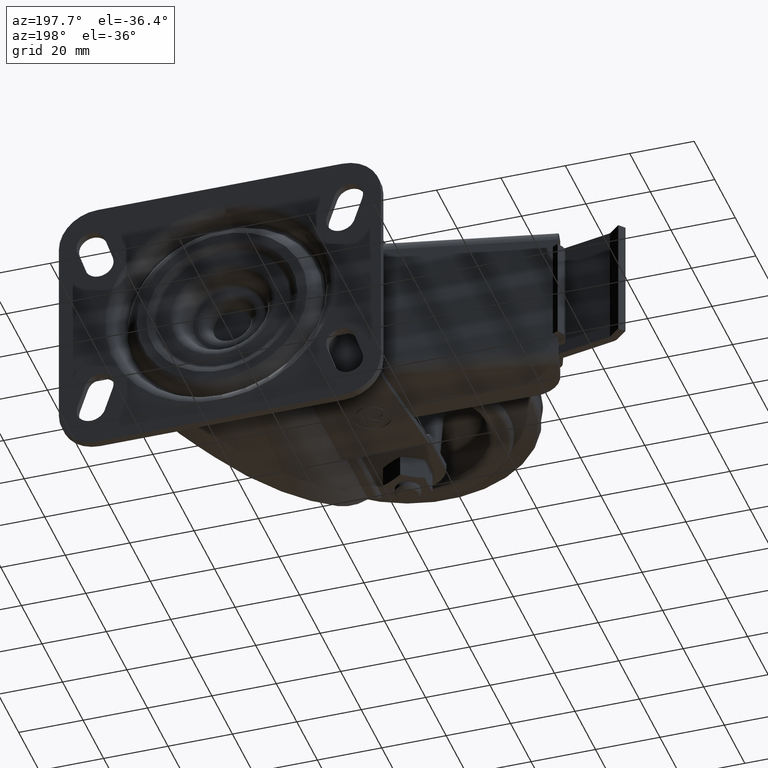
[diagram: clean part render]
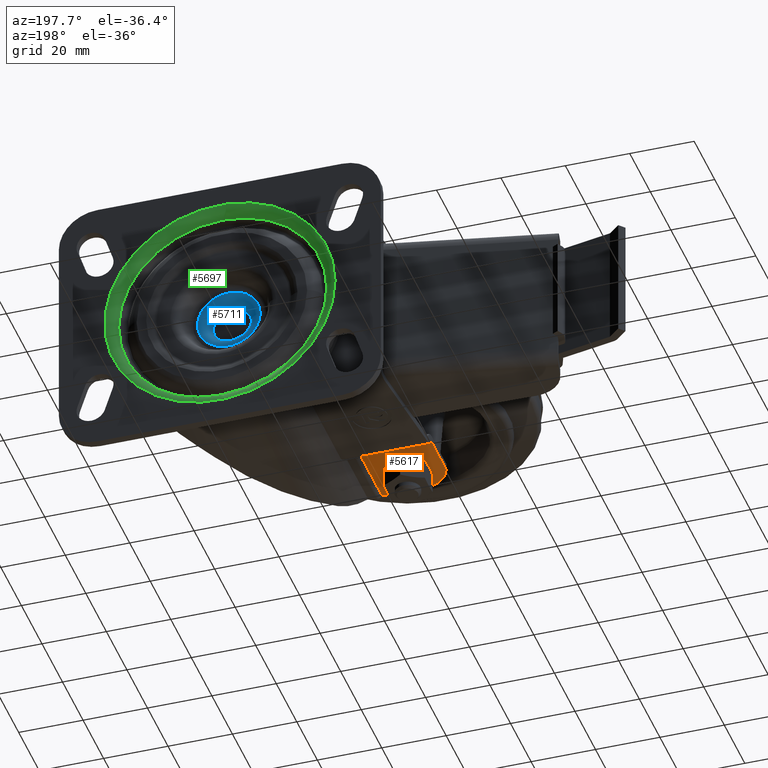
[diagram: same view with three faces highlighted in distinct colors, each labeled with its STEP entity id]
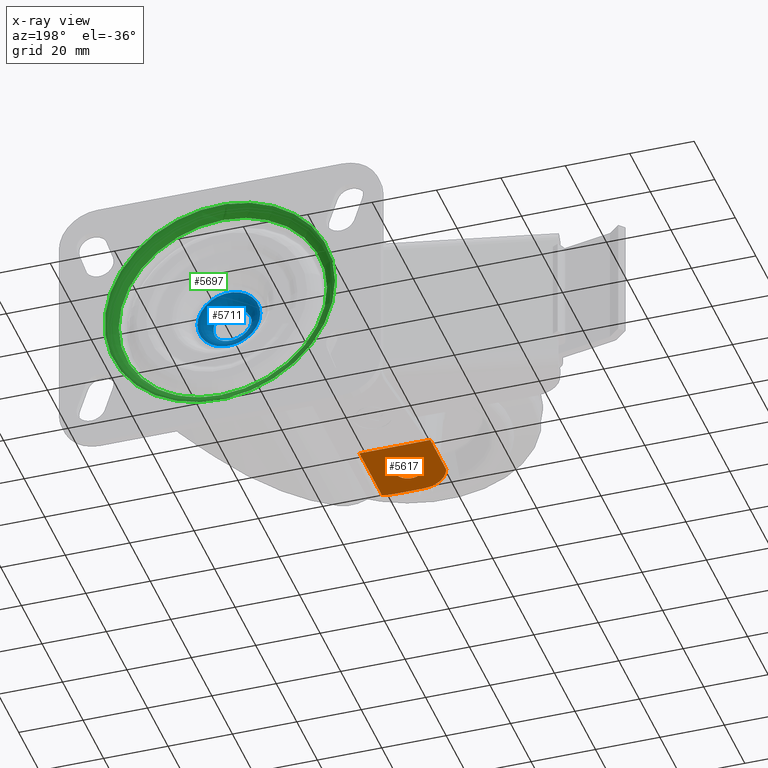
[diagram: x-ray of the same camera — body ghosted, the three highlighted faces saturated]
A machine part, auxiliary view with three faces highlighted in distinct colors.
The next image is the same camera in x-ray (body ghosted, the three faces saturated) — at least one of them is partly hidden behind the body in this view.
Their STEP definitions:

[orange] entity #5617 — the highlighted planar face has unit normal (0, -0, -1).
#614=LINE('',#8711,#1120);
#615=LINE('',#8715,#1121);
#616=LINE('',#8717,#1122);
#617=LINE('',#8718,#1123);
#1120=VECTOR('',#6895,7.87836783893138);
#1121=VECTOR('',#6898,15.4008791770772);
#1122=VECTOR('',#6899,22.0635083268963);
#1123=VECTOR('',#6900,21.9602281147048);
#1531=FACE_BOUND('',#2041,.T.);
#1663=FACE_OUTER_BOUND('',#2040,.T.);
#2040=EDGE_LOOP('',(#4188,#4189,#4190,#4191,#4192,#4193));
#2041=EDGE_LOOP('',(#4194));
#2390=CIRCLE('',#6005,20.);
#2405=CIRCLE('',#6036,10.);
#2406=CIRCLE('',#6037,4.);
#2661=VERTEX_POINT('',#8473);
#2662=VERTEX_POINT('',#8475);
#2723=VERTEX_POINT('',#8710);
#2724=VERTEX_POINT('',#8712);
#2725=VERTEX_POINT('',#8714);
#2726=VERTEX_POINT('',#8716);
#2727=VERTEX_POINT('',#8719);
#3213=EDGE_CURVE('',#2661,#2662,#2390,.F.);
#3288=EDGE_CURVE('',#2723,#2661,#614,.T.);
#3289=EDGE_CURVE('',#2724,#2723,#2405,.F.);
#3290=EDGE_CURVE('',#2724,#2725,#615,.T.);
#3291=EDGE_CURVE('',#2725,#2726,#616,.T.);
#3292=EDGE_CURVE('',#2726,#2662,#617,.T.);
#3293=EDGE_CURVE('',#2727,#2727,#2406,.F.);
#4188=ORIENTED_EDGE('',*,*,#3213,.F.);
#4189=ORIENTED_EDGE('',*,*,#3288,.F.);
#4190=ORIENTED_EDGE('',*,*,#3289,.F.);
#4191=ORIENTED_EDGE('',*,*,#3290,.T.);
#4192=ORIENTED_EDGE('',*,*,#3291,.T.);
#4193=ORIENTED_EDGE('',*,*,#3292,.T.);
#4194=ORIENTED_EDGE('',*,*,#3293,.T.);
#5377=PLANE('',#6035);
#5617=ADVANCED_FACE('',(#1663,#1531),#5377,.T.);
#6005=AXIS2_PLACEMENT_3D('',#8476,#6784,#6785);
#6035=AXIS2_PLACEMENT_3D('',#8709,#6893,#6894);
#6036=AXIS2_PLACEMENT_3D('',#8713,#6896,#6897);
#6037=AXIS2_PLACEMENT_3D('',#8720,#6901,#6902);
#6784=DIRECTION('center_axis',(0.,-1.52704531335987E-16,-1.));
#6785=DIRECTION('ref_axis',(0.,1.,-1.52704531335987E-16));
#6893=DIRECTION('center_axis',(0.,-1.52704531335987E-16,-1.));
#6894=DIRECTION('ref_axis',(0.,1.,0.));
#6895=DIRECTION('',(1.,0.,0.));
#6896=DIRECTION('center_axis',(0.,-1.52704531335987E-16,-1.));
#6897=DIRECTION('ref_axis',(0.,1.,-1.52704531335987E-16));
#6898=DIRECTION('',(0.,1.,-1.52704531335987E-16));
#6899=DIRECTION('',(1.,0.,0.));
#6900=DIRECTION('',(0.,-1.,0.));
#6901=DIRECTION('center_axis',(0.,-1.52704531335987E-16,-1.));
#6902=DIRECTION('ref_axis',(0.,1.,-1.52704531335987E-16));
#8473=CARTESIAN_POINT('',(6.44836783893138,-10.,-23.));
#8475=CARTESIAN_POINT('',(11.0635083268963,-9.4602281147048,-23.));
#8476=CARTESIAN_POINT('Origin',(6.44836783893136,10.,-23.));
#8709=CARTESIAN_POINT('Origin',(-11.,-10.22,-23.));
#8710=CARTESIAN_POINT('',(-1.43,-10.,-23.));
#8711=CARTESIAN_POINT('',(-11.,-10.,-23.));
#8712=CARTESIAN_POINT('',(-11.,-2.90087917707718,-23.));
#8713=CARTESIAN_POINT('Origin',(-1.43,-3.90312782094782E-15,-23.));
#8714=CARTESIAN_POINT('',(-11.,12.5,-23.));
#8715=CARTESIAN_POINT('',(-11.,-10.22,-23.));
#8716=CARTESIAN_POINT('',(11.0635083268963,12.5,-23.));
#8717=CARTESIAN_POINT('',(-11.,12.5,-23.));
#8718=CARTESIAN_POINT('',(11.0635083268963,17.,-23.));
#8719=CARTESIAN_POINT('',(0.,4.,-23.));
#8720=CARTESIAN_POINT('Origin',(0.,0.,-23.));

[blue] entity #5711 — the highlighted toroidal blend (fillet) surface has major radius 9.75 mm and minor (blend) radius 3.75 mm.
#363=TOROIDAL_SURFACE('',#6175,9.7499999999998,3.75);
#1555=FACE_BOUND('',#2159,.T.);
#1757=FACE_OUTER_BOUND('',#2158,.T.);
#2158=EDGE_LOOP('',(#4624));
#2159=EDGE_LOOP('',(#4625));
#2448=CIRCLE('',#6174,9.74999999999983);
#2449=CIRCLE('',#6176,5.99999999999981);
#2832=VERTEX_POINT('',#9120);
#2833=VERTEX_POINT('',#9123);
#3469=EDGE_CURVE('',#2832,#2832,#2448,.T.);
#3470=EDGE_CURVE('',#2833,#2833,#2449,.T.);
#4624=ORIENTED_EDGE('',*,*,#3469,.T.);
#4625=ORIENTED_EDGE('',*,*,#3470,.F.);
#5711=ADVANCED_FACE('',(#1757,#1555),#363,.T.);
#6174=AXIS2_PLACEMENT_3D('',#9121,#7304,#7305);
#6175=AXIS2_PLACEMENT_3D('',#9122,#7306,#7307);
#6176=AXIS2_PLACEMENT_3D('',#9124,#7308,#7309);
#7304=DIRECTION('center_axis',(7.986688628599E-15,1.,0.));
#7305=DIRECTION('ref_axis',(-1.,7.986688628599E-15,0.));
#7306=DIRECTION('center_axis',(7.986688628599E-15,1.,0.));
#7307=DIRECTION('ref_axis',(-1.,7.89491928622345E-15,0.));
#7308=DIRECTION('center_axis',(7.986688628599E-15,1.,0.));
#7309=DIRECTION('ref_axis',(-1.,7.986688628599E-15,0.));
#9120=CARTESIAN_POINT('',(27.25,58.1999999999999,0.));
#9121=CARTESIAN_POINT('Origin',(36.9999999999998,58.1999999999998,0.));
#9122=CARTESIAN_POINT('Origin',(36.9999999999998,54.4499999999998,0.));
#9123=CARTESIAN_POINT('',(31.,54.4499999999999,0.));
#9124=CARTESIAN_POINT('Origin',(36.9999999999998,54.4499999999999,0.));

[green] entity #5697 — the highlighted toroidal blend (fillet) surface has major radius 35.7868 mm and minor (blend) radius 3.5 mm.
#355=TOROIDAL_SURFACE('',#6146,35.7868487091199,3.49999999999998);
#1541=FACE_BOUND('',#2131,.T.);
#1743=FACE_OUTER_BOUND('',#2130,.T.);
#2130=EDGE_LOOP('',(#4596));
#2131=EDGE_LOOP('',(#4597));
#2434=CIRCLE('',#6147,35.7868487091199);
#2435=CIRCLE('',#6148,32.3400215735773);
#2818=VERTEX_POINT('',#9079);
#2819=VERTEX_POINT('',#9081);
#3455=EDGE_CURVE('',#2818,#2818,#2434,.T.);
#3456=EDGE_CURVE('',#2819,#2819,#2435,.T.);
#4596=ORIENTED_EDGE('',*,*,#3455,.T.);
#4597=ORIENTED_EDGE('',*,*,#3456,.F.);
#5697=ADVANCED_FACE('',(#1743,#1541),#355,.T.);
#6146=AXIS2_PLACEMENT_3D('',#9078,#7248,#7249);
#6147=AXIS2_PLACEMENT_3D('',#9080,#7250,#7251);
#6148=AXIS2_PLACEMENT_3D('',#9082,#7252,#7253);
#7248=DIRECTION('center_axis',(7.986688628599E-15,1.,0.));
#7249=DIRECTION('ref_axis',(-1.,7.95784884782244E-15,0.));
#7250=DIRECTION('center_axis',(7.986688628599E-15,1.,0.));
#7251=DIRECTION('ref_axis',(-1.,7.986688628599E-15,0.));
#7252=DIRECTION('center_axis',(7.986688628599E-15,1.,0.));
#7253=DIRECTION('ref_axis',(-1.,7.986688628599E-15,0.));
#9078=CARTESIAN_POINT('Origin',(36.9999999999999,63.4999999999997,0.));
#9079=CARTESIAN_POINT('',(1.21315129088003,67.,0.));
#9080=CARTESIAN_POINT('Origin',(36.9999999999999,66.9999999999997,0.));
#9081=CARTESIAN_POINT('',(4.65997842642263,64.1077686218349,0.));
#9082=CARTESIAN_POINT('Origin',(36.9999999999999,64.1077686218347,0.));